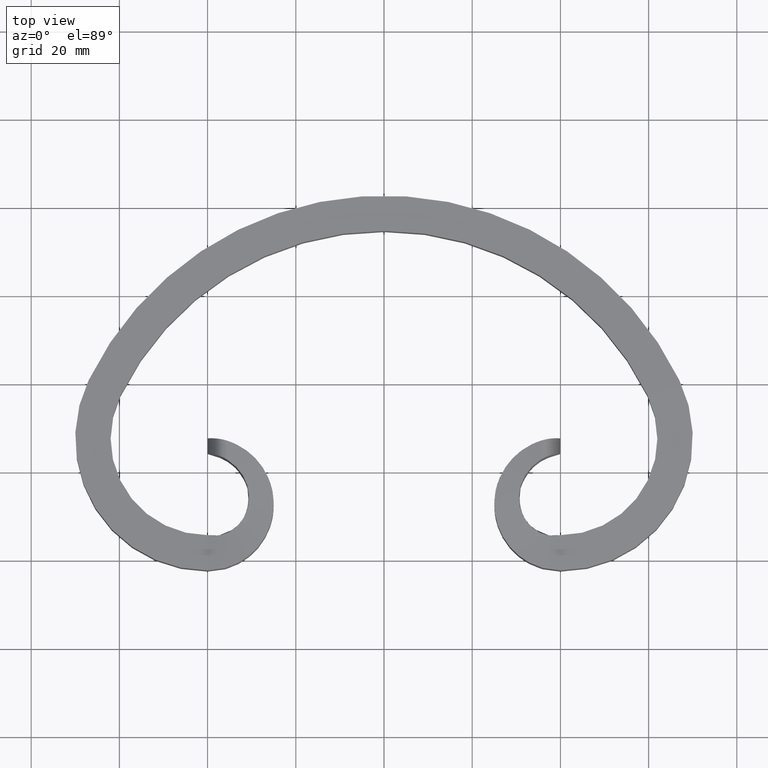
[diagram: clean part render]
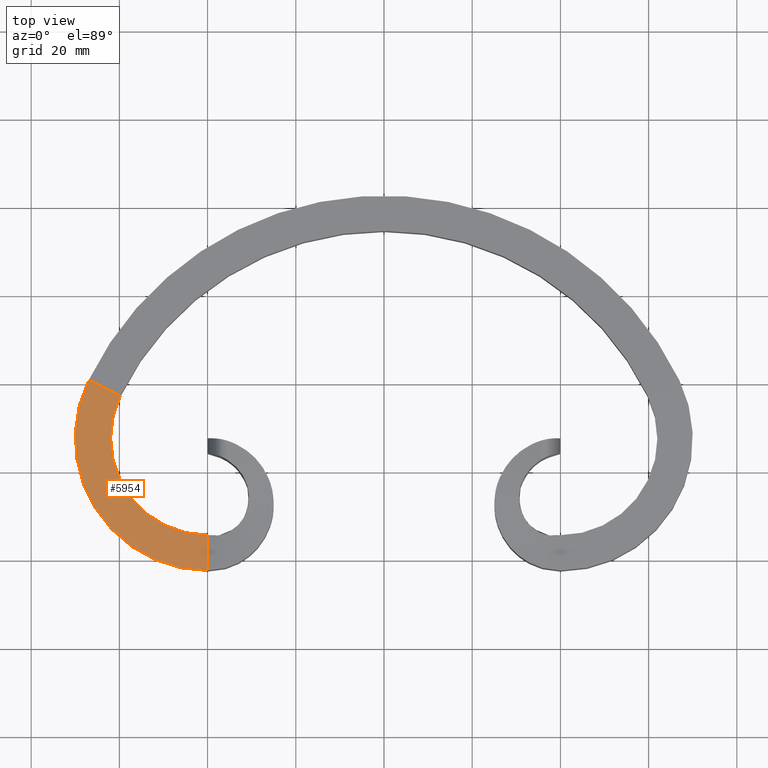
[diagram: same view with one face highlighted and labeled with its STEP entity id]
A machine part, top view. The second image highlights one B-rep face of the part: STEP entity #5954.
In plain terms, the highlighted planar face has unit normal (0, 0, 1).
Its self-contained STEP definition (entity closure, byte-faithful):
#173 = AXIS2_PLACEMENT_3D ( 'NONE', #10546, #7695, #11707 ) ;
#556 = PLANE ( 'NONE',  #173 ) ;
#654 = DIRECTION ( 'NONE',  ( 0.000000000000000000, 0.000000000000000000, 1.000000000000000000 ) ) ;
#984 = EDGE_CURVE ( 'NONE', #11109, #1830, #4014, .T. ) ;
#1232 = EDGE_CURVE ( 'NONE', #11109, #11227, #7023, .T. ) ;
#1354 = ORIENTED_EDGE ( 'NONE', *, *, #1232, .F. ) ;
#1830 = VERTEX_POINT ( 'NONE', #7355 ) ;
#2424 = ORIENTED_EDGE ( 'NONE', *, *, #8690, .T. ) ;
#2854 = VECTOR ( 'NONE', #3700, 1000.000000000000000 ) ;
#2882 = CARTESIAN_POINT ( 'NONE',  ( -40.00000000000000000, -34.50000000000000711, 8.000000000000001776 ) ) ;
#2964 = FACE_OUTER_BOUND ( 'NONE', #3209, .T. ) ;
#2983 = CARTESIAN_POINT ( 'NONE',  ( -59.77528089887640306, -2.859550561797725265, 8.000000000000001776 ) ) ;
#3209 = EDGE_LOOP ( 'NONE', ( #2424, #8645, #1354, #11229 ) ) ;
#3359 = EDGE_CURVE ( 'NONE', #11227, #11998, #4724, .T. ) ;
#3700 = DIRECTION ( 'NONE',  ( 0.000000000000000000, -1.000000000000000000, -2.168404344971008868E-16 ) ) ;
#4014 = LINE ( 'NONE', #6413, #9238 ) ;
#4724 = LINE ( 'NONE', #2882, #2854 ) ;
#5278 = DIRECTION ( 'NONE',  ( -0.8988764044943817755, 0.4382022471910118622, 0.000000000000000000 ) ) ;
#5954 = ADVANCED_FACE ( 'NONE', ( #2964 ), #556, .T. ) ;
#6260 = CARTESIAN_POINT ( 'NONE',  ( -40.00000000000000000, -12.49999999999999822, 8.000000000000000000 ) ) ;
#6325 = DIRECTION ( 'NONE',  ( -0.8988764044943816645, 0.4382022471910119177, -2.168404344971008868E-16 ) ) ;
#6408 = AXIS2_PLACEMENT_3D ( 'NONE', #6260, #654, #5278 ) ;
#6413 = CARTESIAN_POINT ( 'NONE',  ( -59.77528089887641727, -2.859550561797707946, 8.000000000000001776 ) ) ;
#7023 = CIRCLE ( 'NONE', #7955, 22.00000000000001066 ) ;
#7263 = DIRECTION ( 'NONE',  ( 0.000000000000000000, 0.000000000000000000, 1.000000000000000000 ) ) ;
#7355 = CARTESIAN_POINT ( 'NONE',  ( -66.96629213483147680, 0.6460674157303738507, 8.000000000000000000 ) ) ;
#7447 = DIRECTION ( 'NONE',  ( -0.8988764044943818865, 0.4382022471910118067, 0.000000000000000000 ) ) ;
#7503 = CIRCLE ( 'NONE', #6408, 30.00000000000001066 ) ;
#7695 = DIRECTION ( 'NONE',  ( 0.000000000000000000, 0.000000000000000000, 1.000000000000000000 ) ) ;
#7955 = AXIS2_PLACEMENT_3D ( 'NONE', #10083, #7263, #7447 ) ;
#7992 = CARTESIAN_POINT ( 'NONE',  ( -39.99999999999999289, -34.50000000000000711, 8.000000000000001776 ) ) ;
#8645 = ORIENTED_EDGE ( 'NONE', *, *, #3359, .F. ) ;
#8690 = EDGE_CURVE ( 'NONE', #1830, #11998, #7503, .T. ) ;
#9238 = VECTOR ( 'NONE', #6325, 1000.000000000000000 ) ;
#10083 = CARTESIAN_POINT ( 'NONE',  ( -40.00000000000000000, -12.49999999999999822, 8.000000000000001776 ) ) ;
#10546 = CARTESIAN_POINT ( 'NONE',  ( -59.77528089887641016, -2.859550561797735924, 8.000000000000000000 ) ) ;
#11109 = VERTEX_POINT ( 'NONE', #2983 ) ;
#11227 = VERTEX_POINT ( 'NONE', #7992 ) ;
#11229 = ORIENTED_EDGE ( 'NONE', *, *, #984, .T. ) ;
#11567 = CARTESIAN_POINT ( 'NONE',  ( -39.99999999999999289, -42.50000000000000711, 8.000000000000000000 ) ) ;
#11707 = DIRECTION ( 'NONE',  ( 1.000000000000000000, 0.000000000000000000, -0.000000000000000000 ) ) ;
#11998 = VERTEX_POINT ( 'NONE', #11567 ) ;